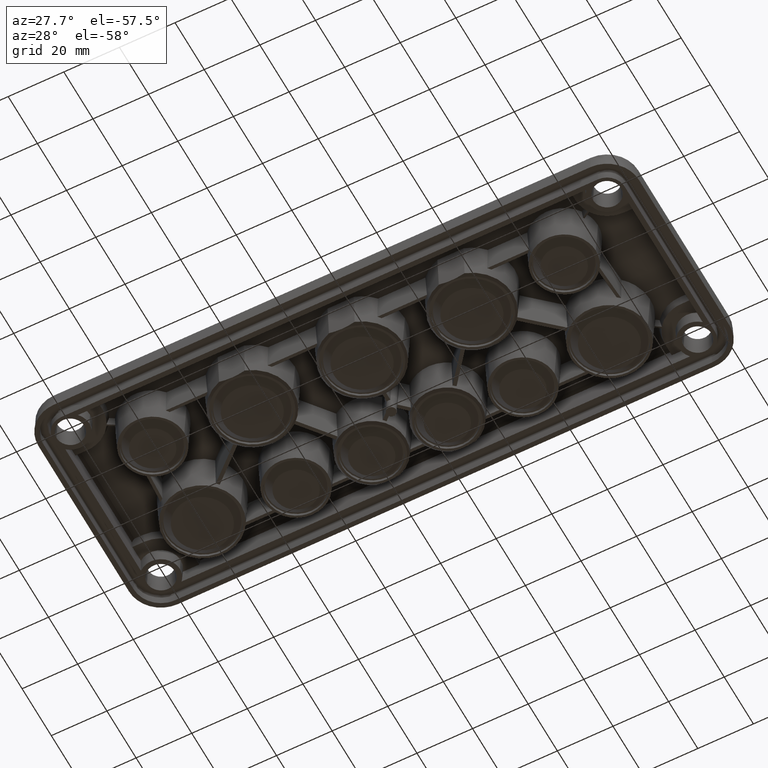
[diagram: clean part render]
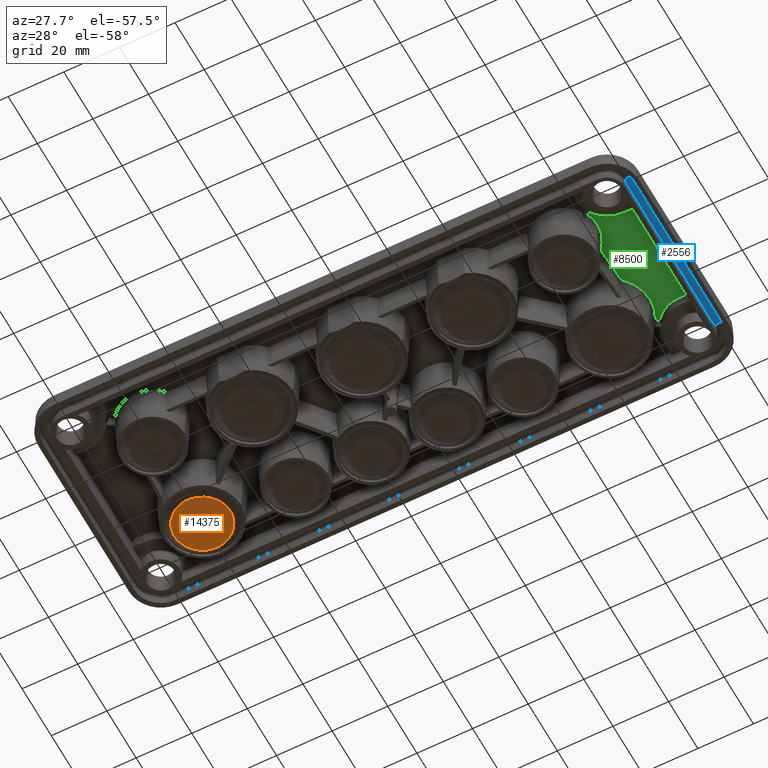
[diagram: same view with three faces highlighted in distinct colors, each labeled with its STEP entity id]
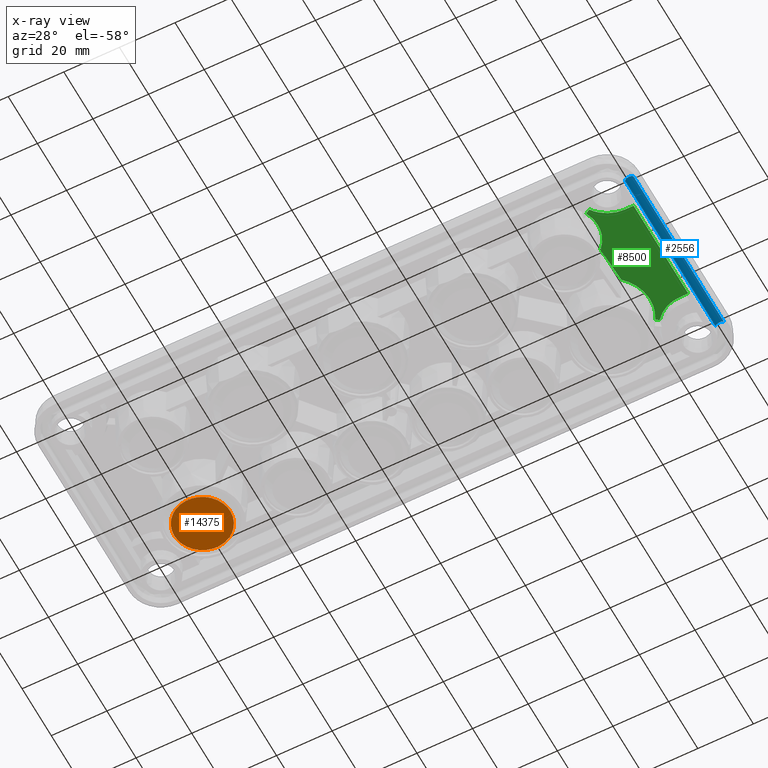
[diagram: x-ray of the same camera — body ghosted, the three highlighted faces saturated]
A machine part, auxiliary view with three faces highlighted in distinct colors.
The next image is the same camera in x-ray (body ghosted, the three faces saturated) — at least one of them is partly hidden behind the body in this view.
Their STEP definitions:

[orange] entity #14375 — the highlighted planar face has unit normal (0, 0, 1).
#137 = CARTESIAN_POINT ( 'NONE',  ( 135.8264119175780100, 144.2360455651534000, -7.500000000000008900 ) ) ;
#637 = CARTESIAN_POINT ( 'NONE',  ( 130.4127497816516000, 160.2230398535573400, -7.499999999999985800 ) ) ;
#1360 = CARTESIAN_POINT ( 'NONE',  ( 148.5247499191680400, 154.0381894054246700, -7.499999999999996400 ) ) ;
#1414 = CARTESIAN_POINT ( 'NONE',  ( 148.2628087239107200, 151.4039364393631800, -7.500000000000008900 ) ) ;
#1586 = B_SPLINE_CURVE_WITH_KNOTS ( 'NONE', 3,
 ( #2671, #15002, #6819, #12033, #16199, #2905, #7101, #137, #13980, #12510, #5668, #11198, #15293, #15174, #6936, #1414, #9756, #15117 ),
 .UNSPECIFIED., .F., .F.,
 ( 4, 2, 2, 2, 2, 2, 2, 2, 4 ),
 ( 0.0000000000000000000, 0.1250000000000000000, 0.2500000000000000000, 0.3750000000000000000, 0.5000000000000000000, 0.6250000000000000000, 0.7500000000000000000, 0.8750000000000000000, 1.000000000000000000 ),
 .UNSPECIFIED. ) ;
#1675 = DIRECTION ( 'NONE',  ( 1.000000000000000000, 0.0000000000000000000, -0.0000000000000000000 ) ) ;
#2203 = CARTESIAN_POINT ( 'NONE',  ( 141.0949178497009500, 163.8403332456959400, -7.499999999999985800 ) ) ;
#2671 = CARTESIAN_POINT ( 'NONE',  ( 128.3965798481109500, 154.0381894054246700, -7.499999999999996400 ) ) ;
#2905 = CARTESIAN_POINT ( 'NONE',  ( 132.2758144355067600, 145.9902743034367900, -7.500000000000008900 ) ) ;
#3054 = CARTESIAN_POINT ( 'NONE',  ( 150.9082571043564400, 154.0381894054246500, -7.500000000000000000 ) ) ;
#3560 = EDGE_CURVE ( 'NONE', #7785, #15420, #1586, .T. ) ;
#4769 = AXIS2_PLACEMENT_3D ( 'NONE', #3054, #8558, #1675 ) ;
#4897 = CARTESIAN_POINT ( 'NONE',  ( 148.5247499191680400, 154.0381894054246700, -7.499999999999996400 ) ) ;
#4958 = CARTESIAN_POINT ( 'NONE',  ( 148.2628087239107800, 156.6724423714861100, -7.499999999999986700 ) ) ;
#5018 = CARTESIAN_POINT ( 'NONE',  ( 129.6668043683548600, 159.1066536493836500, -7.499999999999986700 ) ) ;
#5668 = CARTESIAN_POINT ( 'NONE',  ( 141.0949178497009500, 144.2360455651534000, -7.500000000000007100 ) ) ;
#6229 = CARTESIAN_POINT ( 'NONE',  ( 144.6455153317721200, 162.0861045074125900, -7.499999999999985800 ) ) ;
#6353 = CARTESIAN_POINT ( 'NONE',  ( 132.2758144355067900, 162.0861045074125600, -7.499999999999986700 ) ) ;
#6527 = CARTESIAN_POINT ( 'NONE',  ( 128.3965798481109500, 155.3555750559546300, -7.499999999999986700 ) ) ;
#6819 = CARTESIAN_POINT ( 'NONE',  ( 128.6585210433682100, 151.4039364393631800, -7.500000000000008000 ) ) ;
#6936 = CARTESIAN_POINT ( 'NONE',  ( 147.2545253989240500, 148.9697251614657300, -7.500000000000007100 ) ) ;
#7101 = CARTESIAN_POINT ( 'NONE',  ( 133.3922006396805400, 145.2443288901400800, -7.500000000000008000 ) ) ;
#7279 = EDGE_LOOP ( 'NONE', ( #8617, #17404 ) ) ;
#7482 = CARTESIAN_POINT ( 'NONE',  ( 128.6585210433682100, 156.6724423714861700, -7.499999999999985800 ) ) ;
#7785 = VERTEX_POINT ( 'NONE', #9589 ) ;
#8558 = DIRECTION ( 'NONE',  ( 0.0000000000000000000, 0.0000000000000000000, 1.000000000000000000 ) ) ;
#8617 = ORIENTED_EDGE ( 'NONE', *, *, #3560, .F. ) ;
#8715 = FACE_OUTER_BOUND ( 'NONE', #7279, .T. ) ;
#8905 = B_SPLINE_CURVE_WITH_KNOTS ( 'NONE', 3,
 ( #4897, #11690, #4958, #14535, #14481, #6229, #17339, #2203, #10381, #15847, #14595, #11807, #6353, #637, #5018, #7482, #6527, #13312 ),
 .UNSPECIFIED., .F., .F.,
 ( 4, 2, 2, 2, 2, 2, 2, 2, 4 ),
 ( 0.0000000000000000000, 0.1250000000000000000, 0.2500000000000000000, 0.3750000000000000000, 0.5000000000000000000, 0.6250000000000000000, 0.7500000000000000000, 0.8750000000000000000, 1.000000000000000000 ),
 .UNSPECIFIED. ) ;
#9589 = CARTESIAN_POINT ( 'NONE',  ( 128.3965798481109500, 154.0381894054246700, -7.499999999999996400 ) ) ;
#9756 = CARTESIAN_POINT ( 'NONE',  ( 148.5247499191680200, 152.7208037548946300, -7.500000000000007100 ) ) ;
#10381 = CARTESIAN_POINT ( 'NONE',  ( 139.7780505341694900, 164.1022744409532100, -7.499999999999986700 ) ) ;
#11198 = CARTESIAN_POINT ( 'NONE',  ( 143.5291291275984000, 145.2443288901400500, -7.500000000000008900 ) ) ;
#11690 = CARTESIAN_POINT ( 'NONE',  ( 148.5247499191680400, 155.3555750559546300, -7.499999999999984900 ) ) ;
#11807 = CARTESIAN_POINT ( 'NONE',  ( 133.3922006396805700, 162.8320499207093000, -7.499999999999985800 ) ) ;
#12033 = CARTESIAN_POINT ( 'NONE',  ( 129.6668043683548600, 148.9697251614657000, -7.500000000000007100 ) ) ;
#12510 = CARTESIAN_POINT ( 'NONE',  ( 139.7780505341693800, 143.9741043698961100, -7.500000000000008900 ) ) ;
#13312 = CARTESIAN_POINT ( 'NONE',  ( 128.3965798481109500, 154.0381894054246700, -7.499999999999996400 ) ) ;
#13456 = EDGE_CURVE ( 'NONE', #15420, #7785, #8905, .T. ) ;
#13980 = CARTESIAN_POINT ( 'NONE',  ( 137.1432792331095200, 143.9741043698961700, -7.500000000000008000 ) ) ;
#14375 = ADVANCED_FACE ( 'NONE', ( #8715 ), #15390, .F. ) ;
#14481 = CARTESIAN_POINT ( 'NONE',  ( 146.5085799856273900, 160.2230398535573400, -7.499999999999986700 ) ) ;
#14535 = CARTESIAN_POINT ( 'NONE',  ( 147.2545253989240500, 159.1066536493835600, -7.499999999999985800 ) ) ;
#14595 = CARTESIAN_POINT ( 'NONE',  ( 135.8264119175780100, 163.8403332456959200, -7.499999999999986700 ) ) ;
#15002 = CARTESIAN_POINT ( 'NONE',  ( 128.3965798481108900, 152.7208037548946900, -7.500000000000007100 ) ) ;
#15117 = CARTESIAN_POINT ( 'NONE',  ( 148.5247499191680400, 154.0381894054246700, -7.499999999999996400 ) ) ;
#15174 = CARTESIAN_POINT ( 'NONE',  ( 146.5085799856273600, 147.8533389572919800, -7.500000000000008900 ) ) ;
#15293 = CARTESIAN_POINT ( 'NONE',  ( 144.6455153317721700, 145.9902743034367600, -7.500000000000007100 ) ) ;
#15390 = PLANE ( 'NONE',  #4769 ) ;
#15420 = VERTEX_POINT ( 'NONE', #1360 ) ;
#15847 = CARTESIAN_POINT ( 'NONE',  ( 137.1432792331095200, 164.1022744409531800, -7.499999999999985800 ) ) ;
#16199 = CARTESIAN_POINT ( 'NONE',  ( 130.4127497816515700, 147.8533389572919800, -7.500000000000008000 ) ) ;
#17339 = CARTESIAN_POINT ( 'NONE',  ( 143.5291291275984500, 162.8320499207093000, -7.499999999999986700 ) ) ;
#17404 = ORIENTED_EDGE ( 'NONE', *, *, #13456, .F. ) ;

[blue] entity #2556 — the highlighted cylindrical surface (edge-blend (fillet) strip) has radius 1.6 mm, axis along (-0, 1, 0).
#1808 = AXIS2_PLACEMENT_3D ( 'NONE', #12352, #10013, #12581 ) ;
#2390 = CARTESIAN_POINT ( 'NONE',  ( 314.6063463263133700, 170.0381894054246500, 2.983737529913327500 ) ) ;
#2487 = DIRECTION ( 'NONE',  ( -1.221252092952919200E-016, 1.000000000000000000, 6.400311013642876900E-018 ) ) ;
#2556 = ADVANCED_FACE ( 'NONE', ( #10929 ), #14803, .F. ) ;
#2590 = CARTESIAN_POINT ( 'NONE',  ( 317.8019608375328200, 170.0381894054246500, 2.983737529988715200 ) ) ;
#3253 = VERTEX_POINT ( 'NONE', #9773 ) ;
#3531 = EDGE_CURVE ( 'NONE', #3253, #11493, #11760, .T. ) ;
#3710 = ORIENTED_EDGE ( 'NONE', *, *, #14449, .F. ) ;
#3798 = VECTOR ( 'NONE', #12656, 1000.000000000000000 ) ;
#4827 = EDGE_LOOP ( 'NONE', ( #3710, #11723, #16896, #8219 ) ) ;
#5448 = CIRCLE ( 'NONE', #6361, 1.599999999999990300 ) ;
#5919 = VERTEX_POINT ( 'NONE', #2590 ) ;
#6090 = AXIS2_PLACEMENT_3D ( 'NONE', #11509, #9829, #6883 ) ;
#6263 = DIRECTION ( 'NONE',  ( 0.0000000000000000000, 1.000000000000000000, 0.0000000000000000000 ) ) ;
#6361 = AXIS2_PLACEMENT_3D ( 'NONE', #15829, #6263, #14458 ) ;
#6883 = DIRECTION ( 'NONE',  ( -1.000000000000000000, 0.0000000000000000000, 0.0000000000000000000 ) ) ;
#7207 = EDGE_CURVE ( 'NONE', #11493, #5919, #5448, .T. ) ;
#7833 = CARTESIAN_POINT ( 'NONE',  ( 317.8019608375328200, 108.0381894054246300, 2.983737529988712100 ) ) ;
#7867 = LINE ( 'NONE', #12777, #3798 ) ;
#8219 = ORIENTED_EDGE ( 'NONE', *, *, #7207, .T. ) ;
#9773 = CARTESIAN_POINT ( 'NONE',  ( 314.6063463263173500, 108.0381894054246200, 2.983737529984908000 ) ) ;
#9829 = DIRECTION ( 'NONE',  ( -1.224606353822377300E-016, 1.000000000000000000, 0.0000000000000000000 ) ) ;
#10013 = DIRECTION ( 'NONE',  ( -1.224606353822377300E-016, 1.000000000000000000, 0.0000000000000000000 ) ) ;
#10929 = FACE_OUTER_BOUND ( 'NONE', #4827, .T. ) ;
#11493 = VERTEX_POINT ( 'NONE', #2390 ) ;
#11509 = CARTESIAN_POINT ( 'NONE',  ( 316.2041535819254800, 108.0381894054246000, 2.900000000000000800 ) ) ;
#11723 = ORIENTED_EDGE ( 'NONE', *, *, #17502, .F. ) ;
#11760 = LINE ( 'NONE', #17741, #15640 ) ;
#12352 = CARTESIAN_POINT ( 'NONE',  ( 316.2041535819254800, 108.0381894054246300, 2.900000000000000800 ) ) ;
#12581 = DIRECTION ( 'NONE',  ( -1.000000000000000000, 0.0000000000000000000, 0.0000000000000000000 ) ) ;
#12656 = DIRECTION ( 'NONE',  ( -1.224606353822377300E-016, 1.000000000000000000, 0.0000000000000000000 ) ) ;
#12777 = CARTESIAN_POINT ( 'NONE',  ( 317.8019608375328200, 108.0381894054246000, 2.983737529988713900 ) ) ;
#14297 = CIRCLE ( 'NONE', #1808, 1.599999999999990300 ) ;
#14449 = EDGE_CURVE ( 'NONE', #16171, #5919, #7867, .T. ) ;
#14458 = DIRECTION ( 'NONE',  ( 1.000000000000000000, 0.0000000000000000000, 0.0000000000000000000 ) ) ;
#14803 = CYLINDRICAL_SURFACE ( 'NONE', #6090, 1.599999999999990300 ) ;
#15640 = VECTOR ( 'NONE', #2487, 1000.000000000000000 ) ;
#15829 = CARTESIAN_POINT ( 'NONE',  ( 316.2041535819254800, 170.0381894054246500, 2.900000000000000800 ) ) ;
#16171 = VERTEX_POINT ( 'NONE', #7833 ) ;
#16896 = ORIENTED_EDGE ( 'NONE', *, *, #3531, .T. ) ;
#17502 = EDGE_CURVE ( 'NONE', #3253, #16171, #14297, .T. ) ;
#17741 = CARTESIAN_POINT ( 'NONE',  ( 314.6063463263182000, 108.0381894054246000, 2.983737529988711200 ) ) ;

[green] entity #8500 — the highlighted planar face has unit normal (0, 0, 1).
#54 = ORIENTED_EDGE ( 'NONE', *, *, #14161, .F. ) ;
#128 = VERTEX_POINT ( 'NONE', #11184 ) ;
#215 = CARTESIAN_POINT ( 'NONE',  ( 300.0777792394561100, 117.3148200196544800, 8.000000000000000000 ) ) ;
#271 = VERTEX_POINT ( 'NONE', #1074 ) ;
#273 = CARTESIAN_POINT ( 'NONE',  ( 304.2842924476868800, 119.7589130635832100, 8.000000000000000000 ) ) ;
#389 = CARTESIAN_POINT ( 'NONE',  ( 301.3631530455916700, 118.3157562369029400, 8.000000000000001800 ) ) ;
#447 = CARTESIAN_POINT ( 'NONE',  ( 303.3479738914016900, 119.4066414335824900, 7.999999999999998200 ) ) ;
#804 = CARTESIAN_POINT ( 'NONE',  ( 296.4457353415213000, 116.0108080332696300, 8.000000000000001800 ) ) ;
#898 = DIRECTION ( 'NONE',  ( 1.000000000000000000, 0.0000000000000000000, -0.0000000000000000000 ) ) ;
#1047 = CARTESIAN_POINT ( 'NONE',  ( 304.6448373212761000, 158.2430764026529500, 8.000000000000000000 ) ) ;
#1074 = CARTESIAN_POINT ( 'NONE',  ( 298.4979890456644400, 162.4212765888380300, 7.999999999999996400 ) ) ;
#1221 = EDGE_CURVE ( 'NONE', #10754, #128, #14838, .T. ) ;
#1323 = CARTESIAN_POINT ( 'NONE',  ( 299.4796454354318500, 155.3693959491375000, 8.000000000000007100 ) ) ;
#1353 = CARTESIAN_POINT ( 'NONE',  ( 296.2102755147032000, 144.7697777350821300, 8.000000000000007100 ) ) ;
#1388 = VECTOR ( 'NONE', #3834, 1000.000000000000000 ) ;
#1515 = ORIENTED_EDGE ( 'NONE', *, *, #14623, .T. ) ;
#1535 = CARTESIAN_POINT ( 'NONE',  ( 285.3187255471875100, 153.3711385641328500, 7.999999999999996400 ) ) ;
#1775 = CARTESIAN_POINT ( 'NONE',  ( 306.1001283794807400, 120.1727711020712800, 8.000000000000000000 ) ) ;
#1823 = EDGE_CURVE ( 'NONE', #13495, #14568, #16003, .T. ) ;
#2101 = CARTESIAN_POINT ( 'NONE',  ( 297.6658587427215800, 119.6250566006832100, 8.000000000000008900 ) ) ;
#2228 = CARTESIAN_POINT ( 'NONE',  ( 298.0430987760914800, 160.4965281939089400, 8.000000000000007100 ) ) ;
#2299 = CARTESIAN_POINT ( 'NONE',  ( 294.1261775441192300, 130.2102586515722200, 8.000000000000000000 ) ) ;
#2346 = VERTEX_POINT ( 'NONE', #3709 ) ;
#2369 = EDGE_CURVE ( 'NONE', #14568, #8261, #15022, .T. ) ;
#2432 = CARTESIAN_POINT ( 'NONE',  ( 294.8138677611878500, 143.3307926698942400, 8.000000000000003600 ) ) ;
#2548 = CARTESIAN_POINT ( 'NONE',  ( 297.8625577126400100, 147.2803865649387700, 8.000000000000008900 ) ) ;
#2606 = CARTESIAN_POINT ( 'NONE',  ( 299.3764197478674900, 152.0356966865020600, 8.000000000000008900 ) ) ;
#2961 = DIRECTION ( 'NONE',  ( -0.8243514924436324800, -0.5660782780728790300, -0.0000000000000000000 ) ) ;
#2975 = EDGE_CURVE ( 'NONE', #271, #15530, #9838, .T. ) ;
#3036 = CARTESIAN_POINT ( 'NONE',  ( 298.6073506634720600, 115.8532756374564300, 7.999999999999998200 ) ) ;
#3210 = CARTESIAN_POINT ( 'NONE',  ( 300.1730441623102500, 117.3970085999654000, 8.000000000000000000 ) ) ;
#3337 = LINE ( 'NONE', #12436, #6125 ) ;
#3534 = LINE ( 'NONE', #9220, #1388 ) ;
#3537 = EDGE_CURVE ( 'NONE', #2346, #10754, #15469, .T. ) ;
#3619 = CARTESIAN_POINT ( 'NONE',  ( 297.4543422371447100, 124.7589447281584100, 8.000000000000007100 ) ) ;
#3627 = CARTESIAN_POINT ( 'NONE',  ( 303.8642427340259400, 158.4918723433755200, 8.000000000000000000 ) ) ;
#3709 = CARTESIAN_POINT ( 'NONE',  ( 299.4796454354318500, 154.0381894054246700, 8.000000000000005300 ) ) ;
#3747 = CARTESIAN_POINT ( 'NONE',  ( 300.1127067330605200, 160.7301544060592800, 8.000000000000001800 ) ) ;
#3787 = ORIENTED_EDGE ( 'NONE', *, *, #2975, .F. ) ;
#3834 = DIRECTION ( 'NONE',  ( -5.802577046369502900E-017, 1.000000000000000000, -6.114640366875678000E-017 ) ) ;
#3848 = CARTESIAN_POINT ( 'NONE',  ( 298.5783867154788100, 159.2641640494493100, 8.000000000000008900 ) ) ;
#3885 = CARTESIAN_POINT ( 'NONE',  ( 297.7796454354318600, 121.5381894054246300, 8.000000000000005300 ) ) ;
#3965 = CARTESIAN_POINT ( 'NONE',  ( 299.2966932639021700, 156.7004793670853600, 8.000000000000007100 ) ) ;
#3980 = EDGE_CURVE ( 'NONE', #5555, #9804, #16472, .T. ) ;
#3992 = ORIENTED_EDGE ( 'NONE', *, *, #17369, .F. ) ;
#4034 = DIRECTION ( 'NONE',  ( 1.000000000000000000, -2.576212685368214700E-017, -6.902941085752249300E-018 ) ) ;
#4047 = CARTESIAN_POINT ( 'NONE',  ( 299.4796454354318500, 153.0369282037339400, 8.000000000000007100 ) ) ;
#4076 = B_SPLINE_CURVE_WITH_KNOTS ( 'NONE', 3,
 ( #14560, #2228, #3848, #3965, #1323, #6792 ),
 .UNSPECIFIED., .F., .F.,
 ( 4, 2, 4 ),
 ( 0.0000000000000000000, 0.5000000000000000000, 1.000000000000000000 ),
 .UNSPECIFIED. ) ;
#4150 = CARTESIAN_POINT ( 'NONE',  ( 294.8138677611878500, 143.3307926698942400, 8.000000000000003600 ) ) ;
#4682 = CARTESIAN_POINT ( 'NONE',  ( 294.8138677611878500, 143.3307926698942400, 8.000000000000000000 ) ) ;
#4735 = DIRECTION ( 'NONE',  ( 0.0000000000000000000, 0.0000000000000000000, 1.000000000000000000 ) ) ;
#4800 = DIRECTION ( 'NONE',  ( -0.05234143390356712400, -0.9986292476674806200, 0.0000000000000000000 ) ) ;
#4878 = VERTEX_POINT ( 'NONE', #7961 ) ;
#4938 = CARTESIAN_POINT ( 'NONE',  ( 299.2359226117104600, 161.5467203167937700, 8.000000000000000000 ) ) ;
#5093 = CARTESIAN_POINT ( 'NONE',  ( 296.4457353415213000, 116.0108080332696300, 8.000000000000001800 ) ) ;
#5117 = CARTESIAN_POINT ( 'NONE',  ( 300.3319086375043400, 160.5461535869798100, 7.999999999999998200 ) ) ;
#5183 = CARTESIAN_POINT ( 'NONE',  ( 297.3679602047683900, 146.4037490121960200, 8.000000000000007100 ) ) ;
#5232 = EDGE_CURVE ( 'NONE', #4878, #10194, #3337, .T. ) ;
#5555 = VERTEX_POINT ( 'NONE', #11927 ) ;
#5799 = CARTESIAN_POINT ( 'NONE',  ( 298.0493650279802300, 115.0486302213942900, 7.999999999999998200 ) ) ;
#5924 = CARTESIAN_POINT ( 'NONE',  ( 311.2414026493751700, 157.7343418281312200, 8.000000000000014200 ) ) ;
#5932 = B_SPLINE_CURVE_WITH_KNOTS ( 'NONE', 3,
 ( #2299, #15877, #6382, #3619, #17373, #7871 ),
 .UNSPECIFIED., .F., .F.,
 ( 4, 2, 4 ),
 ( 0.0000000000000000000, 0.5000000000000000000, 1.000000000000000000 ),
 .UNSPECIFIED. ) ;
#6125 = VECTOR ( 'NONE', #4034, 1000.000000000000000 ) ;
#6181 = VECTOR ( 'NONE', #2961, 1000.000000000000200 ) ;
#6373 = CARTESIAN_POINT ( 'NONE',  ( 296.8820299181730300, 116.8621094783418200, 8.000000000000007100 ) ) ;
#6382 = CARTESIAN_POINT ( 'NONE',  ( 296.2036422889842100, 127.7276738587449500, 8.000000000000008900 ) ) ;
#6579 = CARTESIAN_POINT ( 'NONE',  ( 299.4796454354318500, 154.0381894054246700, 8.000000000000005300 ) ) ;
#6685 = CARTESIAN_POINT ( 'NONE',  ( 305.2119056504834600, 158.0927423063615400, 8.000000000000000000 ) ) ;
#6792 = CARTESIAN_POINT ( 'NONE',  ( 299.4796454354318500, 154.0381894054246700, 8.000000000000005300 ) ) ;
#7066 = VECTOR ( 'NONE', #4800, 1000.000000000000100 ) ;
#7820 = CARTESIAN_POINT ( 'NONE',  ( 298.7823235217039200, 162.0606401876708800, 8.000000000000001800 ) ) ;
#7871 = CARTESIAN_POINT ( 'NONE',  ( 297.7796454354318600, 121.5381894054246300, 8.000000000000005300 ) ) ;
#7961 = CARTESIAN_POINT ( 'NONE',  ( 308.1606648836394700, 157.7343418281311900, 7.999999999999998200 ) ) ;
#8183 = CARTESIAN_POINT ( 'NONE',  ( 295.5472226544661700, 144.0124924531683900, 8.000000000000007100 ) ) ;
#8229 = CARTESIAN_POINT ( 'NONE',  ( 298.0493650279802300, 115.0486302213942900, 7.999999999999998200 ) ) ;
#8261 = VERTEX_POINT ( 'NONE', #8229 ) ;
#8428 = CARTESIAN_POINT ( 'NONE',  ( 300.6578765197382900, 117.7957118808732000, 8.000000000000000000 ) ) ;
#8488 = CARTESIAN_POINT ( 'NONE',  ( 305.5029196362147000, 120.0517497441173400, 7.999999999999998200 ) ) ;
#8500 = ADVANCED_FACE ( 'NONE', ( #14269 ), #10398, .F. ) ;
#8601 = CARTESIAN_POINT ( 'NONE',  ( 308.1606648836394700, 120.3420369827179700, 7.999999999999998200 ) ) ;
#8663 = CARTESIAN_POINT ( 'NONE',  ( 305.3838235355705700, 120.0247573519070100, 8.000000000000000000 ) ) ;
#9014 = CARTESIAN_POINT ( 'NONE',  ( 300.3749810507077900, 160.5107908530254100, 7.999999999999998200 ) ) ;
#9075 = CARTESIAN_POINT ( 'NONE',  ( 298.4979890456644400, 162.4212765888380300, 7.999999999999996400 ) ) ;
#9220 = CARTESIAN_POINT ( 'NONE',  ( 311.2414026493751700, 169.6081505379108300, 8.000000000000032000 ) ) ;
#9327 = CARTESIAN_POINT ( 'NONE',  ( 307.2425247176874400, 157.7344223977216600, 8.000000000000000000 ) ) ;
#9335 = DIRECTION ( 'NONE',  ( -1.000000000000000000, -8.849520143973740100E-017, 2.371221775980697800E-017 ) ) ;
#9571 = CARTESIAN_POINT ( 'NONE',  ( 305.3849117268679800, 158.0513963065008600, 8.000000000000000000 ) ) ;
#9758 = ORIENTED_EDGE ( 'NONE', *, *, #1221, .F. ) ;
#9804 = VERTEX_POINT ( 'NONE', #13792 ) ;
#9838 = LINE ( 'NONE', #1535, #6181 ) ;
#9889 = CARTESIAN_POINT ( 'NONE',  ( 300.0290457368088300, 117.2721073188610600, 8.000000000000000000 ) ) ;
#10035 = VECTOR ( 'NONE', #9335, 1000.000000000000000 ) ;
#10092 = ORIENTED_EDGE ( 'NONE', *, *, #5232, .T. ) ;
#10194 = VERTEX_POINT ( 'NONE', #5924 ) ;
#10398 = PLANE ( 'NONE',  #16823 ) ;
#10459 = ORIENTED_EDGE ( 'NONE', *, *, #2369, .F. ) ;
#10484 = CARTESIAN_POINT ( 'NONE',  ( 301.1534766498293200, 159.8808588415994300, 8.000000000000000000 ) ) ;
#10560 = DIRECTION ( 'NONE',  ( 0.8574929257125445400, -0.5144957554275257900, -0.0000000000000000000 ) ) ;
#10754 = VERTEX_POINT ( 'NONE', #4150 ) ;
#10901 = CARTESIAN_POINT ( 'NONE',  ( 305.3261730084220200, 158.0651354754746200, 8.000000000000001800 ) ) ;
#11184 = CARTESIAN_POINT ( 'NONE',  ( 294.1261775441192300, 130.2102586515722200, 8.000000000000000000 ) ) ;
#11224 = ORIENTED_EDGE ( 'NONE', *, *, #3980, .T. ) ;
#11277 = CARTESIAN_POINT ( 'NONE',  ( 299.2520082030072800, 116.5808812169670900, 7.999999999999996400 ) ) ;
#11431 = ORIENTED_EDGE ( 'NONE', *, *, #3537, .F. ) ;
#11446 = CARTESIAN_POINT ( 'NONE',  ( 302.0071956212233900, 118.7046535300346300, 8.000000000000003600 ) ) ;
#11733 = CARTESIAN_POINT ( 'NONE',  ( 305.0409176903968400, 158.1353428696458800, 8.000000000000000000 ) ) ;
#11851 = CARTESIAN_POINT ( 'NONE',  ( 301.9429194884676800, 159.3792192602098800, 8.000000000000001800 ) ) ;
#11927 = CARTESIAN_POINT ( 'NONE',  ( 311.2414026493751700, 120.3420369827179400, 8.000000000000021300 ) ) ;
#11934 = EDGE_LOOP ( 'NONE', ( #11431, #54, #3787, #1515, #10092, #3992, #11224, #15254, #10459, #15486, #13572, #9758 ) ) ;
#12091 = CARTESIAN_POINT ( 'NONE',  ( 308.1606648836394700, 157.7343418281311900, 7.999999999999998200 ) ) ;
#12436 = CARTESIAN_POINT ( 'NONE',  ( 308.1606648836394700, 157.7343418281311900, 7.999999999999998200 ) ) ;
#12690 = CARTESIAN_POINT ( 'NONE',  ( 306.9416060390346400, 120.2987602851675600, 8.000000000000000000 ) ) ;
#12758 = CARTESIAN_POINT ( 'NONE',  ( 307.6709005581278700, 120.3419946636637300, 8.000000000000001800 ) ) ;
#12908 = B_SPLINE_CURVE_WITH_KNOTS ( 'NONE', 3,
 ( #8601, #12758, #12690, #1775, #16735, #8488, #8663, #16681, #273, #447, #11446, #389, #8428, #14061, #3210, #215, #9889, #11277, #3036, #5799 ),
 .UNSPECIFIED., .F., .F.,
 ( 4, 1, 1, 1, 2, 2, 2, 1, 1, 1, 2, 2, 4 ),
 ( 0.0000000000000000000, 0.1250000000000647300, 0.1875000000000968700, 0.2187500000001056100, 0.2343750000001030000, 0.2500000000001004200, 0.5000000000000947000, 0.6250000000000910400, 0.6875000000000843800, 0.7187500000000866000, 0.7343750000000834900, 0.7500000000000803800, 1.000000000000000000 ),
 .UNSPECIFIED. ) ;
#13256 = CARTESIAN_POINT ( 'NONE',  ( 299.8332111778697700, 113.9783225314605800, 8.000000000000000000 ) ) ;
#13358 = CARTESIAN_POINT ( 'NONE',  ( 300.2438891585273400, 160.6194159804757100, 7.999999999999998200 ) ) ;
#13495 = VERTEX_POINT ( 'NONE', #3885 ) ;
#13572 = ORIENTED_EDGE ( 'NONE', *, *, #15676, .F. ) ;
#13792 = CARTESIAN_POINT ( 'NONE',  ( 308.1606648836394700, 120.3420369827179700, 7.999999999999998200 ) ) ;
#14061 = CARTESIAN_POINT ( 'NONE',  ( 300.3167648765741500, 117.5191069910143500, 7.999999999999998200 ) ) ;
#14161 = EDGE_CURVE ( 'NONE', #15530, #2346, #4076, .T. ) ;
#14269 = FACE_OUTER_BOUND ( 'NONE', #11934, .T. ) ;
#14560 = CARTESIAN_POINT ( 'NONE',  ( 297.3514286877298200, 161.6339390039902600, 7.999999999999998200 ) ) ;
#14568 = VERTEX_POINT ( 'NONE', #804 ) ;
#14615 = CARTESIAN_POINT ( 'NONE',  ( 297.7796454354318600, 121.5381894054246300, 8.000000000000005300 ) ) ;
#14623 = EDGE_CURVE ( 'NONE', #271, #4878, #14787, .T. ) ;
#14763 = CARTESIAN_POINT ( 'NONE',  ( 303.2149893466556100, 158.7622612206377800, 8.000000000000003600 ) ) ;
#14787 = B_SPLINE_CURVE_WITH_KNOTS ( 'NONE', 3,
 ( #9075, #7820, #4938, #17440, #3747, #13358, #5117, #9014, #10484, #11851, #14763, #3627, #1047, #11733, #6685, #10901, #9571, #15049, #9327, #12091 ),
 .UNSPECIFIED., .F., .F.,
 ( 4, 1, 1, 1, 2, 2, 2, 1, 1, 1, 2, 2, 4 ),
 ( 0.0000000000000000000, 0.1250000000000232600, 0.1875000000000295300, 0.2187500000000351900, 0.2343750000000355800, 0.2500000000000359700, 0.5000000000000766100, 0.6250000000001034700, 0.6875000000001099100, 0.7187500000001142400, 0.7343750000001082500, 0.7500000000001022500, 1.000000000000000000 ),
 .UNSPECIFIED. ) ;
#14838 = LINE ( 'NONE', #4682, #7066 ) ;
#15022 = LINE ( 'NONE', #13256, #16504 ) ;
#15049 = CARTESIAN_POINT ( 'NONE',  ( 306.3359209042015400, 157.8358814421917500, 8.000000000000000000 ) ) ;
#15254 = ORIENTED_EDGE ( 'NONE', *, *, #17682, .T. ) ;
#15469 = B_SPLINE_CURVE_WITH_KNOTS ( 'NONE', 3,
 ( #6579, #4047, #2606, #17679, #16258, #2548, #5183, #1353, #8183, #2432 ),
 .UNSPECIFIED., .F., .F.,
 ( 4, 2, 2, 2, 4 ),
 ( 0.0000000000000000000, 0.2500000000000000000, 0.5000000000000000000, 0.7500000000000000000, 1.000000000000000000 ),
 .UNSPECIFIED. ) ;
#15486 = ORIENTED_EDGE ( 'NONE', *, *, #1823, .F. ) ;
#15530 = VERTEX_POINT ( 'NONE', #16671 ) ;
#15676 = EDGE_CURVE ( 'NONE', #128, #13495, #5932, .T. ) ;
#15863 = CARTESIAN_POINT ( 'NONE',  ( 297.7796454354318600, 120.5815980046699700, 8.000000000000007100 ) ) ;
#15877 = CARTESIAN_POINT ( 'NONE',  ( 295.2787684254060400, 129.0851208763842000, 8.000000000000007100 ) ) ;
#16003 = B_SPLINE_CURVE_WITH_KNOTS ( 'NONE', 3,
 ( #14615, #15863, #2101, #17234, #6373, #5093 ),
 .UNSPECIFIED., .F., .F.,
 ( 4, 2, 4 ),
 ( 0.0000000000000000000, 0.5000000000000000000, 1.000000000000000000 ),
 .UNSPECIFIED. ) ;
#16258 = CARTESIAN_POINT ( 'NONE',  ( 298.6625132736779700, 149.1161880456030200, 8.000000000000007100 ) ) ;
#16472 = LINE ( 'NONE', #17325, #10035 ) ;
#16504 = VECTOR ( 'NONE', #10560, 1000.000000000000100 ) ;
#16671 = CARTESIAN_POINT ( 'NONE',  ( 297.3514286877298200, 161.6339390039902600, 7.999999999999998200 ) ) ;
#16681 = CARTESIAN_POINT ( 'NONE',  ( 305.3261823237305100, 120.0112597944176300, 8.000000000000000000 ) ) ;
#16735 = CARTESIAN_POINT ( 'NONE',  ( 305.6817310362174000, 120.0908892418104200, 8.000000000000000000 ) ) ;
#16823 = AXIS2_PLACEMENT_3D ( 'NONE', #17231, #4735, #898 ) ;
#17231 = CARTESIAN_POINT ( 'NONE',  ( 126.6606648836394400, 174.2761505090094300, 8.000000000000000000 ) ) ;
#17234 = CARTESIAN_POINT ( 'NONE',  ( 297.2170392551952300, 117.7652637359782400, 8.000000000000007100 ) ) ;
#17325 = CARTESIAN_POINT ( 'NONE',  ( 312.3986259872242500, 120.3420369827179700, 8.000000000000000000 ) ) ;
#17369 = EDGE_CURVE ( 'NONE', #5555, #10194, #3534, .T. ) ;
#17373 = CARTESIAN_POINT ( 'NONE',  ( 297.7796454354318600, 123.1489037664397700, 8.000000000000007100 ) ) ;
#17440 = CARTESIAN_POINT ( 'NONE',  ( 299.8125419579592400, 160.9944579131325200, 8.000000000000001800 ) ) ;
#17679 = CARTESIAN_POINT ( 'NONE',  ( 298.9678476105074800, 150.0752975473933500, 8.000000000000005300 ) ) ;
#17682 = EDGE_CURVE ( 'NONE', #9804, #8261, #12908, .T. ) ;